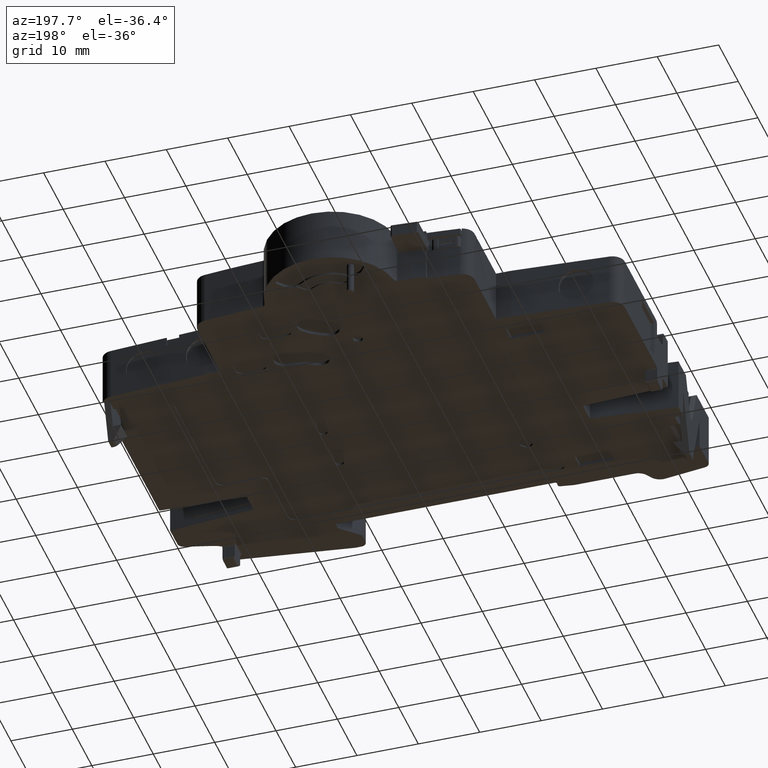
[diagram: clean part render]
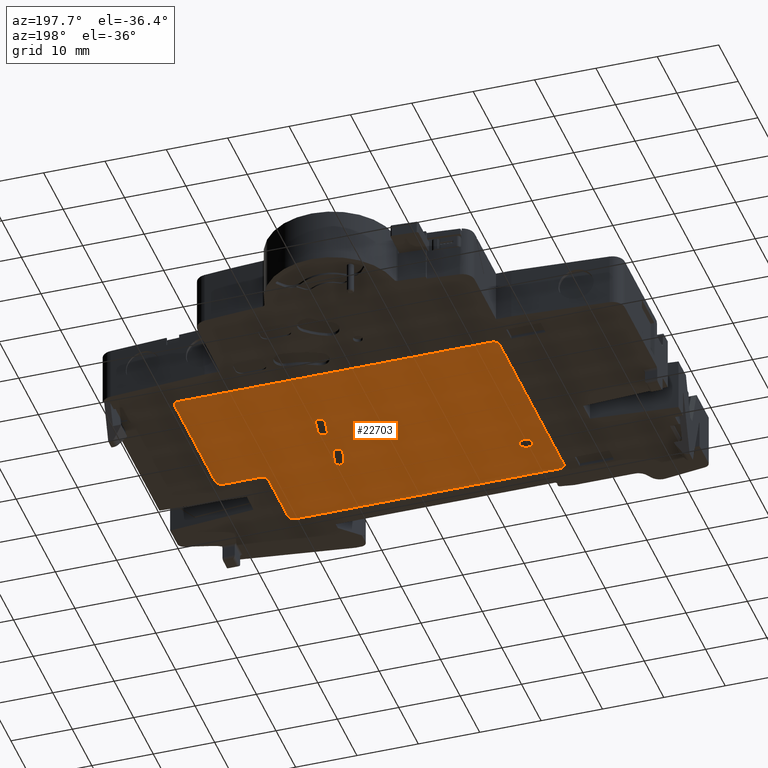
[diagram: same view with one face highlighted and labeled with its STEP entity id]
A machine part, auxiliary view. The second image highlights one B-rep face of the part: STEP entity #22703.
In plain terms, the highlighted planar face has unit normal (0, 0, -1).
Its self-contained STEP definition (entity closure, byte-faithful):
#7268=CARTESIAN_POINT('',(2.5E1,1.4E1,-4.2E0));
#7269=DIRECTION('',(0.E0,0.E0,1.E0));
#7270=DIRECTION('',(0.E0,1.E0,0.E0));
#7271=AXIS2_PLACEMENT_3D('',#7268,#7269,#7270);
#7295=CARTESIAN_POINT('',(3.1E1,1.6E1,-4.2E0));
#7296=DIRECTION('',(0.E0,0.E0,-1.E0));
#7297=DIRECTION('',(1.E0,0.E0,0.E0));
#7298=AXIS2_PLACEMENT_3D('',#7295,#7296,#7297);
#7313=CARTESIAN_POINT('',(3.1E1,3.7E1,-4.2E0));
#7314=DIRECTION('',(0.E0,0.E0,-1.E0));
#7315=DIRECTION('',(0.E0,1.E0,0.E0));
#7316=AXIS2_PLACEMENT_3D('',#7313,#7314,#7315);
#7331=CARTESIAN_POINT('',(-2.E1,3.7E1,-4.2E0));
#7332=DIRECTION('',(0.E0,0.E0,-1.E0));
#7333=DIRECTION('',(-1.E0,0.E0,0.E0));
#7334=AXIS2_PLACEMENT_3D('',#7331,#7332,#7333);
#7349=CARTESIAN_POINT('',(-2.E1,4.E0,-4.2E0));
#7350=DIRECTION('',(0.E0,0.E0,-1.E0));
#7351=DIRECTION('',(0.E0,-1.E0,0.E0));
#7352=AXIS2_PLACEMENT_3D('',#7349,#7350,#7351);
#7367=CARTESIAN_POINT('',(2.3E1,4.E0,-4.2E0));
#7368=DIRECTION('',(0.E0,0.E0,-1.E0));
#7369=DIRECTION('',(1.E0,0.E0,0.E0));
#7370=AXIS2_PLACEMENT_3D('',#7367,#7368,#7369);
#7372=DIRECTION('',(0.E0,-1.E0,0.E0));
#7373=VECTOR('',#7372,1.E1);
#7374=CARTESIAN_POINT('',(2.4E1,1.4E1,-4.2E0));
#7375=LINE('',#7374,#7373);
#7376=DIRECTION('',(-1.E0,0.E0,0.E0));
#7377=VECTOR('',#7376,6.E0);
#7378=CARTESIAN_POINT('',(3.1E1,1.5E1,-4.2E0));
#7379=LINE('',#7378,#7377);
#7380=DIRECTION('',(0.E0,-1.E0,0.E0));
#7381=VECTOR('',#7380,2.1E1);
#7382=CARTESIAN_POINT('',(3.2E1,3.7E1,-4.2E0));
#7383=LINE('',#7382,#7381);
#7384=DIRECTION('',(1.E0,0.E0,0.E0));
#7385=VECTOR('',#7384,5.1E1);
#7386=CARTESIAN_POINT('',(-2.E1,3.8E1,-4.2E0));
#7387=LINE('',#7386,#7385);
#7388=DIRECTION('',(0.E0,1.E0,0.E0));
#7389=VECTOR('',#7388,3.3E1);
#7390=CARTESIAN_POINT('',(-2.1E1,4.E0,-4.2E0));
#7391=LINE('',#7390,#7389);
#7392=DIRECTION('',(-1.E0,0.E0,0.E0));
#7393=VECTOR('',#7392,4.3E1);
#7394=CARTESIAN_POINT('',(2.3E1,3.E0,-4.2E0));
#7395=LINE('',#7394,#7393);
#7396=CARTESIAN_POINT('',(1.173114992030E1,2.595898093313E1,-4.2E0));
#7397=DIRECTION('',(0.E0,0.E0,1.E0));
#7398=DIRECTION('',(9.848077530122E-1,1.736481776669E-1,0.E0));
#7399=AXIS2_PLACEMENT_3D('',#7396,#7397,#7398);
#7401=CARTESIAN_POINT('',(1.22E1,2.33E1,-4.2E0));
#7402=DIRECTION('',(0.E0,0.E0,1.E0));
#7403=DIRECTION('',(-9.848077530122E-1,-1.736481776669E-1,0.E0));
#7404=AXIS2_PLACEMENT_3D('',#7401,#7402,#7403);
#7406=CARTESIAN_POINT('',(1.149681088188E1,1.761979846095E1,-4.2E0));
#7407=DIRECTION('',(0.E0,0.E0,1.E0));
#7408=DIRECTION('',(9.702957262760E-1,2.419218955998E-1,0.E0));
#7409=AXIS2_PLACEMENT_3D('',#7406,#7407,#7408);
#7411=CARTESIAN_POINT('',(1.215E1,1.5E1,-4.2E0));
#7412=DIRECTION('',(0.E0,0.E0,1.E0));
#7413=DIRECTION('',(-9.702957262760E-1,-2.419218955997E-1,0.E0));
#7414=AXIS2_PLACEMENT_3D('',#7411,#7412,#7413);
#7416=CARTESIAN_POINT('',(-1.7E1,1.09E1,-4.2E0));
#7417=DIRECTION('',(0.E0,0.E0,-1.E0));
#7418=DIRECTION('',(1.E0,0.E0,0.E0));
#7419=AXIS2_PLACEMENT_3D('',#7416,#7417,#7418);
#7421=CARTESIAN_POINT('',(-1.7E1,1.09E1,-4.2E0));
#7422=DIRECTION('',(0.E0,0.E0,-1.E0));
#7423=DIRECTION('',(-1.E0,0.E0,0.E0));
#7424=AXIS2_PLACEMENT_3D('',#7421,#7422,#7423);
#7443=DIRECTION('',(1.736481776669E-1,-9.848077530122E-1,0.E0));
#7444=VECTOR('',#7443,2.7E0);
#7445=CARTESIAN_POINT('',(1.099254410554E1,2.582874479988E1,-4.2E0));
#7446=LINE('',#7445,#7444);
#7464=DIRECTION('',(-1.736481776669E-1,9.848077530122E-1,0.E0));
#7465=VECTOR('',#7464,2.7E0);
#7466=CARTESIAN_POINT('',(1.293860581476E1,2.343023613325E1,-4.2E0));
#7467=LINE('',#7466,#7465);
#7485=DIRECTION('',(2.419218955997E-1,-9.702957262760E-1,0.E0));
#7486=VECTOR('',#7485,2.7E0);
#7487=CARTESIAN_POINT('',(1.076908908717E1,1.743835703925E1,-4.2E0));
#7488=LINE('',#7487,#7486);
#7506=DIRECTION('',(-2.419218955997E-1,9.702957262760E-1,0.E0));
#7507=VECTOR('',#7506,2.7E0);
#7508=CARTESIAN_POINT('',(1.287772179471E1,1.518144142170E1,-4.2E0));
#7509=LINE('',#7508,#7507);
#8401=CARTESIAN_POINT('',(-2.E1,3.8E1,-4.2E0));
#8403=VERTEX_POINT('',#8401);
#8405=CARTESIAN_POINT('',(-2.1E1,3.7E1,-4.2E0));
#8407=VERTEX_POINT('',#8405);
#8409=CARTESIAN_POINT('',(3.2E1,3.7E1,-4.2E0));
#8411=VERTEX_POINT('',#8409);
#8413=CARTESIAN_POINT('',(3.1E1,3.8E1,-4.2E0));
#8415=VERTEX_POINT('',#8413);
#8417=CARTESIAN_POINT('',(3.1E1,1.5E1,-4.2E0));
#8419=VERTEX_POINT('',#8417);
#8421=CARTESIAN_POINT('',(3.2E1,1.6E1,-4.2E0));
#8423=VERTEX_POINT('',#8421);
#8425=CARTESIAN_POINT('',(2.3E1,3.E0,-4.2E0));
#8427=VERTEX_POINT('',#8425);
#8429=CARTESIAN_POINT('',(2.4E1,4.E0,-4.2E0));
#8431=VERTEX_POINT('',#8429);
#8433=CARTESIAN_POINT('',(-2.1E1,4.E0,-4.2E0));
#8435=VERTEX_POINT('',#8433);
#8437=CARTESIAN_POINT('',(-2.E1,3.E0,-4.2E0));
#8439=VERTEX_POINT('',#8437);
#8440=CARTESIAN_POINT('',(2.5E1,1.5E1,-4.2E0));
#8442=VERTEX_POINT('',#8440);
#8444=CARTESIAN_POINT('',(2.4E1,1.4E1,-4.2E0));
#8446=VERTEX_POINT('',#8444);
#8448=CARTESIAN_POINT('',(1.246975573506E1,2.608921706638E1,-4.2E0));
#8449=CARTESIAN_POINT('',(1.099254410554E1,2.582874479988E1,-4.2E0));
#8450=VERTEX_POINT('',#8448);
#8451=VERTEX_POINT('',#8449);
#8452=CARTESIAN_POINT('',(1.146139418524E1,2.316976386675E1,-4.2E0));
#8453=VERTEX_POINT('',#8452);
#8454=CARTESIAN_POINT('',(1.293860581476E1,2.343023613325E1,-4.2E0));
#8455=VERTEX_POINT('',#8454);
#8456=CARTESIAN_POINT('',(1.222453267659E1,1.780123988265E1,-4.2E0));
#8457=CARTESIAN_POINT('',(1.076908908717E1,1.743835703925E1,-4.2E0));
#8458=VERTEX_POINT('',#8456);
#8459=VERTEX_POINT('',#8457);
#8460=CARTESIAN_POINT('',(1.142227820529E1,1.481855857830E1,-4.2E0));
#8461=VERTEX_POINT('',#8460);
#8462=CARTESIAN_POINT('',(1.287772179471E1,1.518144142170E1,-4.2E0));
#8463=VERTEX_POINT('',#8462);
#8600=CARTESIAN_POINT('',(-1.595E1,1.09E1,-4.2E0));
#8601=CARTESIAN_POINT('',(-1.805E1,1.09E1,-4.2E0));
#8602=VERTEX_POINT('',#8600);
#8603=VERTEX_POINT('',#8601);
#22658=CARTESIAN_POINT('',(0.E0,0.E0,-4.2E0));
#22659=DIRECTION('',(0.E0,0.E0,-1.E0));
#22660=DIRECTION('',(-1.E0,0.E0,0.E0));
#22661=AXIS2_PLACEMENT_3D('',#22658,#22659,#22660);
#22662=PLANE('',#22661);
#22663=ORIENTED_EDGE('',*,*,#22644,.F.);
#22664=ORIENTED_EDGE('',*,*,#22413,.F.);
#22665=ORIENTED_EDGE('',*,*,#22437,.F.);
#22666=ORIENTED_EDGE('',*,*,#22458,.F.);
#22667=ORIENTED_EDGE('',*,*,#22477,.F.);
#22668=ORIENTED_EDGE('',*,*,#22500,.F.);
#22669=ORIENTED_EDGE('',*,*,#22519,.F.);
#22670=ORIENTED_EDGE('',*,*,#22542,.F.);
#22671=ORIENTED_EDGE('',*,*,#22563,.F.);
#22672=ORIENTED_EDGE('',*,*,#22584,.F.);
#22673=ORIENTED_EDGE('',*,*,#22603,.F.);
#22674=ORIENTED_EDGE('',*,*,#22626,.F.);
#22675=EDGE_LOOP('',(#22663,#22664,#22665,#22666,#22667,#22668,#22669,#22670,
#22671,#22672,#22673,#22674));
#22676=FACE_OUTER_BOUND('',#22675,.F.);
#22678=ORIENTED_EDGE('',*,*,#22677,.F.);
#22680=ORIENTED_EDGE('',*,*,#22679,.F.);
#22682=ORIENTED_EDGE('',*,*,#22681,.F.);
#22684=ORIENTED_EDGE('',*,*,#22683,.F.);
#22685=EDGE_LOOP('',(#22678,#22680,#22682,#22684));
#22686=FACE_BOUND('',#22685,.F.);
#22688=ORIENTED_EDGE('',*,*,#22687,.F.);
#22690=ORIENTED_EDGE('',*,*,#22689,.F.);
#22692=ORIENTED_EDGE('',*,*,#22691,.F.);
#22694=ORIENTED_EDGE('',*,*,#22693,.F.);
#22695=EDGE_LOOP('',(#22688,#22690,#22692,#22694));
#22696=FACE_BOUND('',#22695,.F.);
#22698=ORIENTED_EDGE('',*,*,#22697,.T.);
#22700=ORIENTED_EDGE('',*,*,#22699,.T.);
#22701=EDGE_LOOP('',(#22698,#22700));
#22702=FACE_BOUND('',#22701,.F.);
#22703=ADVANCED_FACE('',(#22676,#22686,#22696,#22702),#22662,.T.);
#7272=CIRCLE('',#7271,1.E0);
#7299=CIRCLE('',#7298,1.E0);
#7317=CIRCLE('',#7316,1.E0);
#7335=CIRCLE('',#7334,1.E0);
#7353=CIRCLE('',#7352,1.E0);
#7371=CIRCLE('',#7370,1.E0);
#7400=CIRCLE('',#7399,7.5E-1);
#7405=CIRCLE('',#7404,7.5E-1);
#7410=CIRCLE('',#7409,7.5E-1);
#7415=CIRCLE('',#7414,7.5E-1);
#7420=CIRCLE('',#7419,1.05E0);
#7425=CIRCLE('',#7424,1.05E0);
#22413=EDGE_CURVE('',#8442,#8446,#7272,.T.);
#22437=EDGE_CURVE('',#8419,#8442,#7379,.T.);
#22458=EDGE_CURVE('',#8423,#8419,#7299,.T.);
#22477=EDGE_CURVE('',#8411,#8423,#7383,.T.);
#22500=EDGE_CURVE('',#8415,#8411,#7317,.T.);
#22519=EDGE_CURVE('',#8403,#8415,#7387,.T.);
#22542=EDGE_CURVE('',#8407,#8403,#7335,.T.);
#22563=EDGE_CURVE('',#8435,#8407,#7391,.T.);
#22584=EDGE_CURVE('',#8439,#8435,#7353,.T.);
#22603=EDGE_CURVE('',#8427,#8439,#7395,.T.);
#22626=EDGE_CURVE('',#8431,#8427,#7371,.T.);
#22644=EDGE_CURVE('',#8446,#8431,#7375,.T.);
#22677=EDGE_CURVE('',#8450,#8451,#7400,.T.);
#22679=EDGE_CURVE('',#8455,#8450,#7467,.T.);
#22681=EDGE_CURVE('',#8453,#8455,#7405,.T.);
#22683=EDGE_CURVE('',#8451,#8453,#7446,.T.);
#22687=EDGE_CURVE('',#8458,#8459,#7410,.T.);
#22689=EDGE_CURVE('',#8463,#8458,#7509,.T.);
#22691=EDGE_CURVE('',#8461,#8463,#7415,.T.);
#22693=EDGE_CURVE('',#8459,#8461,#7488,.T.);
#22697=EDGE_CURVE('',#8602,#8603,#7420,.T.);
#22699=EDGE_CURVE('',#8603,#8602,#7425,.T.);